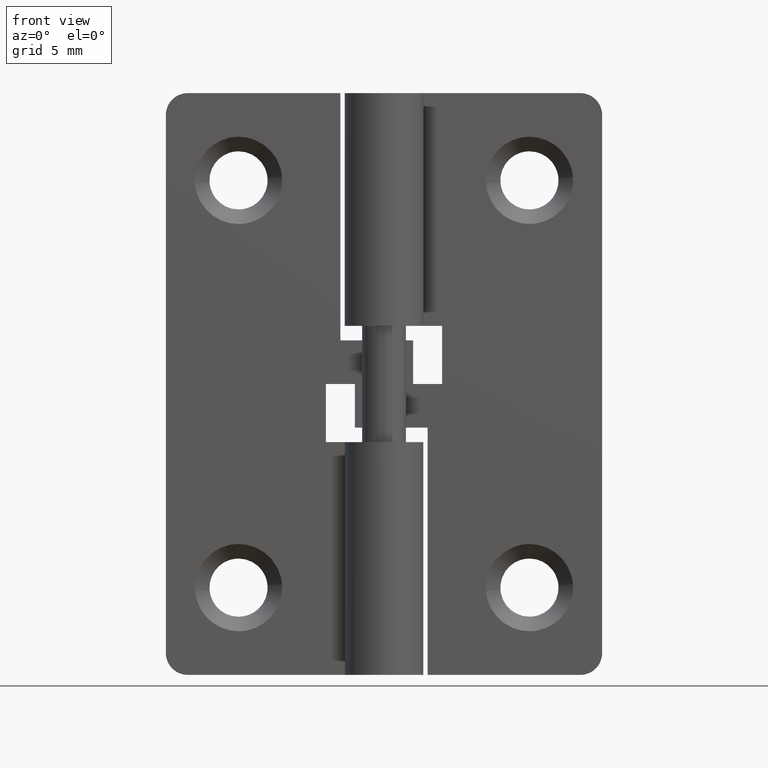
[diagram: clean part render]
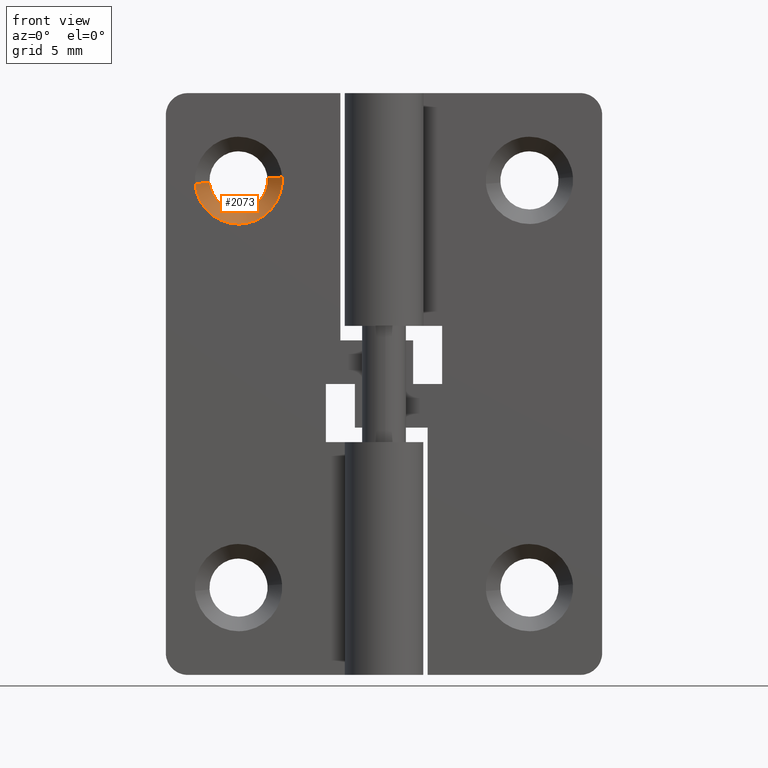
[diagram: same view with one face highlighted and labeled with its STEP entity id]
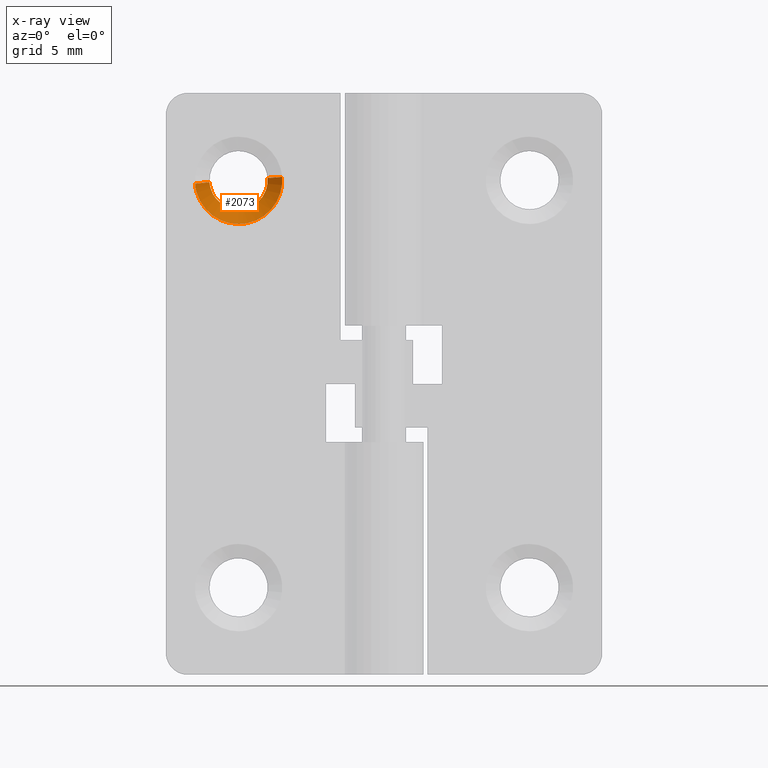
[diagram: x-ray of the same camera — body ghosted, the highlighted face saturated]
A machine part, front view. The second image highlights one B-rep face of the part: STEP entity #2073.
The next image is the same camera in x-ray: the body ghosted, the highlighted face saturated — about 0% of this face is hidden behind the body in this view.
In plain terms, the highlighted face is a freeform B-spline surface patch.
Its self-contained STEP definition (entity closure, byte-faithful):
#1764=CARTESIAN_POINT('',(-8.013061613129381,2.500000000000000,33.771798670512240));
#1765=VERTEX_POINT('',#1764);
#1766=CARTESIAN_POINT('',(-10.0,2.500000000000000,32.0));
#1767=VERTEX_POINT('',#1766);
#1768=CARTESIAN_POINT('',(-8.013061613129381,2.500000000000000,33.771798670512240));
#1769=CARTESIAN_POINT('',(-8.216553988574878,2.500000000000000,32.000000000000007));
#1770=CARTESIAN_POINT('',(-10.0,2.500000000000000,32.0));
#1778=(BOUNDED_CURVE()B_SPLINE_CURVE(2,(#1768,#1769,#1770),.UNSPECIFIED.,.F.,.U.)B_SPLINE_CURVE_WITH_KNOTS((3,3),(0.269767755877807,0.500000000000000),.UNSPECIFIED.)CURVE()GEOMETRIC_REPRESENTATION_ITEM()RATIONAL_B_SPLINE_CURVE((0.957343736458301,0.730266147777626,1.0))REPRESENTATION_ITEM(''));
#1779=EDGE_CURVE('',#1765,#1767,#1778,.T.);
#1818=CARTESIAN_POINT('',(-11.996269607212859,2.499999999999739,33.877903090464329));
#1819=VERTEX_POINT('',#1818);
#1825=CARTESIAN_POINT('',(-10.0,2.500000000000000,32.0));
#1826=CARTESIAN_POINT('',(-11.881412293889698,2.500000000000000,32.000000000000007));
#1827=CARTESIAN_POINT('',(-11.996269607212861,2.499999999999739,33.877903090464322));
#1835=(BOUNDED_CURVE()B_SPLINE_CURVE(2,(#1825,#1826,#1827),.UNSPECIFIED.,.F.,.U.)B_SPLINE_CURVE_WITH_KNOTS((3,3),(0.500000000000000,0.739332976895578),.UNSPECIFIED.)CURVE()GEOMETRIC_REPRESENTATION_ITEM()RATIONAL_B_SPLINE_CURVE((1.0,0.719603976115394,0.976072073078678))REPRESENTATION_ITEM(''));
#1836=EDGE_CURVE('',#1767,#1819,#1835,.T.);
#1863=CARTESIAN_POINT('',(-8.006165332516023,2.499999999955600,34.156918191796393));
#1864=VERTEX_POINT('',#1863);
#1865=CARTESIAN_POINT('',(-8.006165332516023,2.499999999955600,34.156918191796400));
#1866=CARTESIAN_POINT('',(-8.0,2.500000000000000,34.078580214354119));
#1867=CARTESIAN_POINT('',(-8.0,2.500000000000000,34.0));
#1868=CARTESIAN_POINT('',(-8.000000000000002,2.500000000000001,33.885525529942321));
#1869=CARTESIAN_POINT('',(-8.013061613129381,2.500000000000000,33.771798670512247));
#1877=(BOUNDED_CURVE()B_SPLINE_CURVE(2,(#1865,#1866,#1867,#1868,#1869),.UNSPECIFIED.,.F.,.U.)B_SPLINE_CURVE_WITH_KNOTS((3,2,3),(0.236331300574781,0.250000000000000,0.269767755877807),.UNSPECIFIED.)CURVE()GEOMETRIC_REPRESENTATION_ITEM()RATIONAL_B_SPLINE_CURVE((0.969723356050804,0.983986122513416,1.0,0.976840633408922,0.957343736458300))REPRESENTATION_ITEM(''));
#1878=EDGE_CURVE('',#1864,#1765,#1877,.T.);
#1966=CARTESIAN_POINT('',(-7.009247998788410,1.499999999969401,34.235377287418430));
#1967=VERTEX_POINT('',#1966);
#1968=CARTESIAN_POINT('',(-8.006165332516023,2.499999999955600,34.156918191796393));
#1969=CARTESIAN_POINT('',(-7.009247998788410,1.499999999969401,34.235377287418430));
#1970=QUASI_UNIFORM_CURVE('',1,(#1968,#1969),.UNSPECIFIED.,.F.,.U.);
#1971=EDGE_CURVE('',#1864,#1967,#1970,.T.);
#1988=CARTESIAN_POINT('',(-12.990752001211590,1.499999999969401,33.764622712581570));
#1989=VERTEX_POINT('',#1988);
#2005=CARTESIAN_POINT('',(-11.996269607212859,2.499999999999739,33.877903090464329));
#2006=CARTESIAN_POINT('',(-12.990752001211590,1.499999999969401,33.764622712581570));
#2007=QUASI_UNIFORM_CURVE('',1,(#2005,#2006),.UNSPECIFIED.,.F.,.U.);
#2008=EDGE_CURVE('',#1819,#1989,#2007,.T.);
#2014=CARTESIAN_POINT('',(-11.973757666613114,2.525000000000000,33.906616696295515));
#2015=CARTESIAN_POINT('',(-11.971350495768311,2.525000000000000,33.876030690706507));
#2016=CARTESIAN_POINT('',(-11.813955020060432,2.525000000000000,31.876131551814581));
#2017=CARTESIAN_POINT('',(-9.845043285937505,2.525000000000000,32.031088265877067));
#2018=CARTESIAN_POINT('',(-7.876131551814579,2.525000000000000,32.186044979939574));
#2019=CARTESIAN_POINT('',(-8.032187497324083,2.525000000000000,34.168923773880650));
#2020=CARTESIAN_POINT('',(-8.033280287850223,2.525000000000000,34.182808994039519));
#2021=CARTESIAN_POINT('',(-13.023721792428509,1.474375000000000,33.856940324926143));
#2022=CARTESIAN_POINT('',(-13.020034098105821,1.474374999999999,33.810083725857666));
#2023=CARTESIAN_POINT('',(-12.778910206364731,1.474375000000000,30.746314190612139));
#2024=CARTESIAN_POINT('',(-9.762612198488437,1.474375000000000,30.983701992123709));
#2025=CARTESIAN_POINT('',(-6.746314190612143,1.474375000000000,31.221089793635258));
#2026=CARTESIAN_POINT('',(-6.985385972957560,1.474375000000000,34.258784806758300));
#2027=CARTESIAN_POINT('',(-6.987060086545228,1.474375000000000,34.280056436754833));
#2035=(BOUNDED_SURFACE()B_SPLINE_SURFACE(2,1,((#2014,#2021),(#2015,#2022),(#2016,#2023),(#2017,#2024),(#2018,#2025),(#2019,#2026),(#2020,#2027)),.UNSPECIFIED.,.F.,.F.,.U.)B_SPLINE_SURFACE_WITH_KNOTS((3,1,2,1,3),(2,2),(0.0,0.112308806205783,5.125328444826173,10.138348083446560,10.188787625630949),(0.0,1.0),.UNSPECIFIED.)GEOMETRIC_REPRESENTATION_ITEM()RATIONAL_B_SPLINE_SURFACE(((1.013123622136761,1.013123622136761),(1.006561811068381,1.006561811068381),(0.707106781186548,0.707106781186548),(1.0,1.0),(0.707106781186548,0.707106781186548),(1.002947006182072,1.002947006182072),(1.005894012364144,1.005894012364144)))REPRESENTATION_ITEM('')SURFACE());
#2036=ORIENTED_EDGE('',*,*,#1878,.T.);
#2037=ORIENTED_EDGE('',*,*,#1779,.T.);
#2038=ORIENTED_EDGE('',*,*,#1836,.T.);
#2039=ORIENTED_EDGE('',*,*,#2008,.T.);
#2040=CARTESIAN_POINT('',(-10.0,1.500000000000000,31.0));
#2041=VERTEX_POINT('',#2040);
#2042=CARTESIAN_POINT('',(-10.0,1.500000000000000,31.0));
#2043=CARTESIAN_POINT('',(-12.773171474542123,1.500000000000000,31.0));
#2044=CARTESIAN_POINT('',(-12.990752001211597,1.499999999969401,33.764622712581577));
#2052=(BOUNDED_CURVE()B_SPLINE_CURVE(2,(#2042,#2043,#2044),.UNSPECIFIED.,.F.,.U.)B_SPLINE_CURVE_WITH_KNOTS((3,3),(0.500000000000000,0.736331300606114),.UNSPECIFIED.)CURVE()GEOMETRIC_REPRESENTATION_ITEM()RATIONAL_B_SPLINE_CURVE((1.0,0.723120658636423,0.969723356116193))REPRESENTATION_ITEM(''));
#2053=EDGE_CURVE('',#2041,#1989,#2052,.T.);
#2054=ORIENTED_EDGE('',*,*,#2053,.F.);
#2055=CARTESIAN_POINT('',(-7.009247998788410,1.499999999969401,34.235377287418430));
#2056=CARTESIAN_POINT('',(-7.0,1.500000000000000,34.117870321256582));
#2057=CARTESIAN_POINT('',(-7.0,1.500000000000000,34.0));
#2058=CARTESIAN_POINT('',(-6.999999999999999,1.500000000000000,31.000000000000007));
#2059=CARTESIAN_POINT('',(-10.0,1.500000000000000,31.0));
#2067=(BOUNDED_CURVE()B_SPLINE_CURVE(2,(#2055,#2056,#2057,#2058,#2059),.UNSPECIFIED.,.F.,.U.)B_SPLINE_CURVE_WITH_KNOTS((3,2,3),(0.236331300606114,0.250000000000000,0.500000000000000),.UNSPECIFIED.)CURVE()GEOMETRIC_REPRESENTATION_ITEM()RATIONAL_B_SPLINE_CURVE((0.969723356116194,0.983986122550125,1.0,0.707106781186548,1.0))REPRESENTATION_ITEM(''));
#2068=EDGE_CURVE('',#1967,#2041,#2067,.T.);
#2069=ORIENTED_EDGE('',*,*,#2068,.F.);
#2070=ORIENTED_EDGE('',*,*,#1971,.F.);
#2071=EDGE_LOOP('',(#2036,#2037,#2038,#2039,#2054,#2069,#2070));
#2072=FACE_OUTER_BOUND('',#2071,.T.);
#2073=ADVANCED_FACE('',(#2072),#2035,.F.);